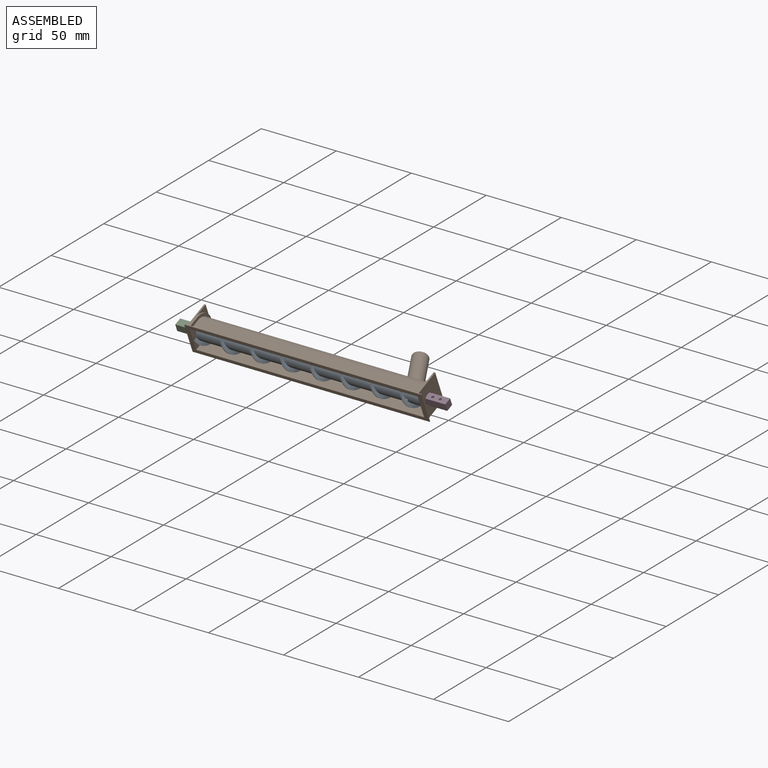
[diagram: assembled view]
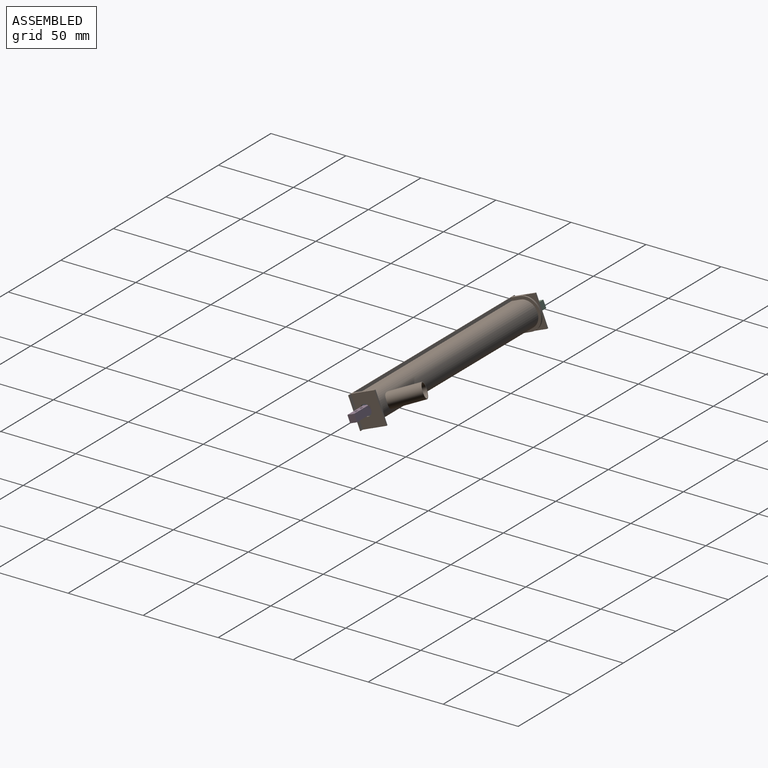
[diagram: assembled view, second angle]
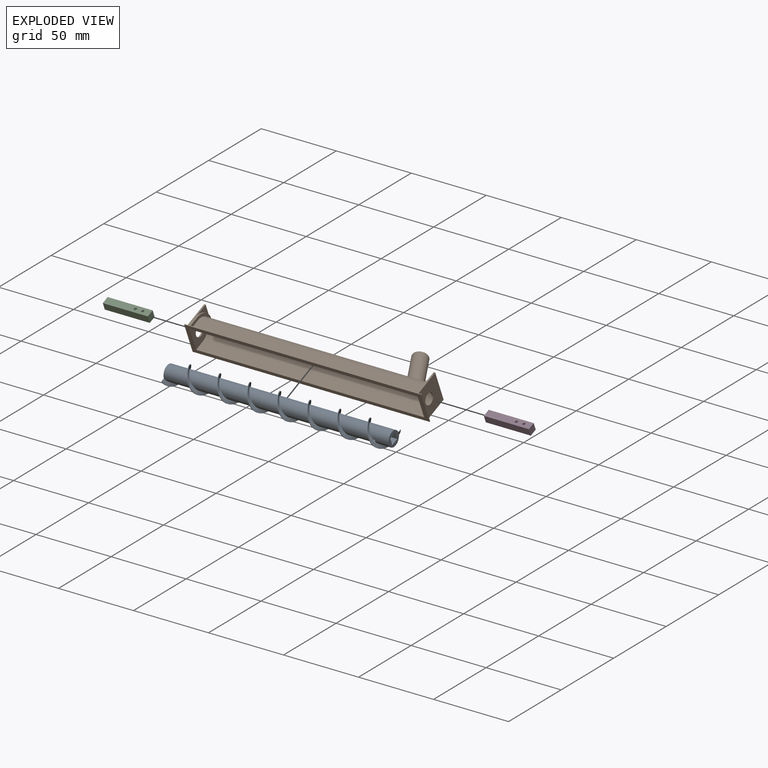
[diagram: exploded view]
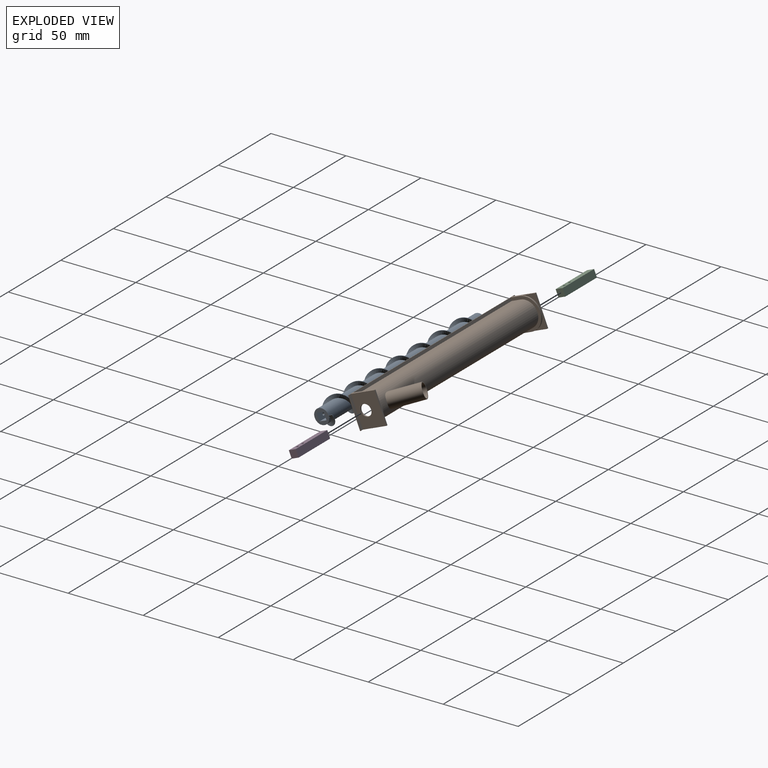
[diagram: exploded view, second angle]
ASSEMBLY  parts=4 mates=8
PART A: 34 faces, bbox 150.5x15x15.8 mm
  f0: bspline ~150x15.77mm, area 824mm2, adj f1,f2,f3,f4,f5,f6,f7,f8
  f1: cylinder r=0.88mm len=2.5mm, axis (0,1,0), area 13.6mm2, adj f0,f2,f3,f9,f10
  f2: plane 1.62x1.23mm, normal (0,1,0), area 0.7mm2, adj f0,f1,f10
  f3: cylinder r=5mm len=150mm, axis (-1,0,0), area 4560mm2, adj f0,f1,f4,f6,f7,f10,f11
  f4: plane 2.5x0.5mm, normal (0,0,-1), area 1.3mm2, adj f0,f3,f5,f10
  f5: cylinder r=7.5mm len=150mm, axis (1,0,0), area 192.6mm2, adj f0,f4,f6,f10
  f6: plane 12.5x10mm, normal (1,0,0), area 56mm2, adj f0,f3,f5,f10,f12,f13,f14,f15
  f7: cylinder r=0.88mm len=2.5mm, axis (0,1,0), area 13.6mm2, adj f0,f3,f8,f10,f13
  f8: plane 1.62x1.23mm, normal (0,-1,0), area 0.7mm2, adj f0,f7,f10
  f9: plane 15x5mm, normal (0,1,0), area 70.2mm2, adj f1,f11,f16,f17,f18,f19
  f10: bspline ~150x15.77mm, area 826.4mm2, adj f1,f2,f3,f4,f5,f6,f7,f8
  f11: plane 10x10mm, normal (-1,0,0), area 53.5mm2, adj f3,f9,f17,f19,f20
  f12: plane 15x5mm, normal (0,0,-1), area 75mm2, adj f6,f13,f15,f21
  f13: plane 15x5mm, normal (0,-1,0), area 70.2mm2, adj f6,f7,f12,f14,f21,f22
  f14: plane 15x5mm, normal (0,0,1), area 75mm2, adj f6,f13,f15,f21
  f15: plane 15x5mm, normal (0,1,0), area 70.2mm2, adj f6,f12,f14,f21,f23,f24
  f16: cylinder r=0.88mm len=2.5mm, axis (0,1,0), area 13.5mm2, adj f9,f25
  f17: plane 15x5mm, normal (0,0,-1), area 75mm2, adj f9,f11,f18,f20
  f18: plane 7.5x7.5mm, normal (1,0,0), area 19.2mm2, adj f9,f17,f19,f20,f26
  f19: plane 15x5mm, normal (0,0,1), area 75mm2, adj f9,f11,f18,f20
  f20: plane 15x5mm, normal (0,-1,0), area 70.2mm2, adj f11,f17,f18,f19,f27,f28
  f21: plane 7.5x7.5mm, normal (-1,0,0), area 19.2mm2, adj f12,f13,f14,f15,f26
  f22: cylinder r=0.88mm len=2.42mm, axis (0,1,0), area 13.3mm2, adj f13,f29
  f23: cylinder r=0.88mm len=2.42mm, axis (0,1,0), area 13.3mm2, adj f15,f30
  f24: cylinder r=0.88mm len=2.42mm, axis (0,1,0), area 13.3mm2, adj f15,f31
  f25: cylinder r=5mm len=1.75mm, axis (-1,0,0), area 2.4mm2, adj f16
  f26: cylinder r=3.75mm len=120mm, axis (-1,0,0), area 2827.4mm2, adj f18,f21
  f27: cylinder r=0.88mm len=2.42mm, axis (0,1,0), area 13.3mm2, adj f20,f32
  f28: cylinder r=0.88mm len=2.42mm, axis (0,1,0), area 13.3mm2, adj f20,f33
  f29: cylinder r=5mm len=1.75mm, axis (-1,0,0), area 2.4mm2, adj f22
  f30: cylinder r=5mm len=1.75mm, axis (-1,0,0), area 2.4mm2, adj f23
  f31: cylinder r=5mm len=1.75mm, axis (-1,0,0), area 2.4mm2, adj f24
  f32: cylinder r=5mm len=1.75mm, axis (-1,0,0), area 2.4mm2, adj f27
  f33: cylinder r=5mm len=1.75mm, axis (-1,0,0), area 2.4mm2, adj f28
PART B: 34 faces, bbox 148.8x21x81.8 mm
  f0: plane 135.95x63.39mm, normal (-0.42,0,-0.91), area 300mm2, adj f2,f7,f12,f14
  f1: plane 135.95x63.39mm, normal (-0.42,0,-0.91), area 300mm2, adj f4,f8,f12,f14
  f2: plane 138.69x69.28mm, normal (0,-1,0), area 975mm2, adj f0,f3,f12,f14
  f3: cylinder r=8.5mm len=139.54mm, axis (-0.91,0,0.42), area 3914.5mm2, adj f2,f4,f12,f14,f32
  f4: plane 138.69x69.28mm, normal (0,1,0), area 975mm2, adj f1,f3,f12,f14
  f5: cylinder r=8mm len=141.14mm, axis (-0.91,0,0.42), area 3746.8mm2, adj f6,f10,f20,f23,f31
  f6: plane 140.72x70.58mm, normal (0,1,0), area 1064mm2, adj f5,f9,f20,f23
  f7: plane 148.78x81.79mm, normal (0,-1,0), area 126mm2, adj f0,f9,f11,f12,f13,f14,f16,f17
  f8: plane 148.78x81.79mm, normal (0,1,0), area 126mm2, adj f1,f9,f11,f12,f13,f14,f15,f17
  f9: plane 143.2x66.77mm, normal (0.42,0,0.91), area 886mm2, adj f6,f7,f8,f10,f20,f23,f28,f30
  f10: plane 140.72x70.58mm, normal (0,-1,0), area 1064mm2, adj f5,f9,f20,f23
  f11: cylinder r=10.5mm len=21mm, axis (-0.91,0,0.42), area 33mm2, adj f7,f8,f12,f15,f16
  f12: plane 21x15.41mm, normal (0.91,0,-0.42), area 85.7mm2, adj f0,f1,f2,f3,f4,f7,f8,f11
  f13: cylinder r=10.5mm len=21mm, axis (0.91,0,-0.42), area 33mm2, adj f7,f8,f14,f21,f22
  f14: plane 21x15.41mm, normal (-0.91,0,0.42), area 85.7mm2, adj f0,f1,f2,f3,f4,f7,f8,f13
  f15: plane 10.5x9.52mm, normal (0.91,0,-0.42), area 23.7mm2, adj f8,f11,f17
  f16: plane 10.5x9.52mm, normal (0.91,0,-0.42), area 23.7mm2, adj f7,f11,f17
  f17: plane 21x0.91mm, normal (-0.42,0,-0.91), area 21mm2, adj f7,f8,f15,f16,f19
  f18: cylinder r=3.74mm len=7.47mm, axis (0.91,0,-0.42), area 23.5mm2, adj f19,f20
  f19: plane 21x15.41mm, normal (-0.91,0,0.42), area 313.2mm2, adj f7,f8,f17,f18,f27
  f20: plane 16x13.59mm, normal (0.91,0,-0.42), area 168.7mm2, adj f5,f6,f9,f10,f18
  f21: plane 10.5x9.52mm, normal (-0.91,0,0.42), area 23.7mm2, adj f7,f13,f24
  f22: plane 10.5x9.52mm, normal (-0.91,0,0.42), area 23.7mm2, adj f8,f13,f24
  f23: plane 16x13.59mm, normal (-0.91,0,0.42), area 168.7mm2, adj f5,f6,f9,f10,f25
  f24: plane 21x0.91mm, normal (-0.42,0,-0.91), area 21mm2, adj f7,f8,f21,f22,f26
  f25: cylinder r=3.74mm len=7.47mm, axis (-0.91,0,0.42), area 23.5mm2, adj f23,f26
  f26: plane 21x15.41mm, normal (0.91,0,-0.42), area 313.2mm2, adj f7,f8,f24,f25,f29
  f27: plane 21x1.81mm, normal (-0.42,0,-0.91), area 42mm2, adj f7,f8,f19,f28
  f28: plane 21x0.45mm, normal (-0.91,0,0.42), area 10.5mm2, adj f7,f8,f9,f27
  f29: plane 21x1.81mm, normal (-0.42,0,-0.91), area 42mm2, adj f7,f8,f26,f30
  f30: plane 21x0.45mm, normal (0.91,0,-0.42), area 10.5mm2, adj f7,f8,f9,f29
  f31: cylinder r=4.5mm len=21.48mm, axis (0,0,-1), area 565.9mm2, adj f5,f33
  f32: cylinder r=5mm len=21.22mm, axis (0,0,-1), area 615.5mm2, adj f3,f33
  f33: plane 10x10mm, normal (0,0,-1), area 14.9mm2, adj f31,f32
PART C: 8 faces, bbox 30x5x5 mm
  f0: plane 30x5mm, normal (0,1,0), area 150mm2, adj f1,f3,f4,f5
  f1: plane 30x5mm, normal (0,0,1), area 145.2mm2, adj f0,f2,f4,f5,f6,f7
  f2: plane 30x5mm, normal (0,-1,0), area 150mm2, adj f1,f3,f4,f5
  f3: plane 30x5mm, normal (0,0,-1), area 145.2mm2, adj f0,f2,f4,f5,f6,f7
  f4: plane 5x5mm, normal (1,0,0), area 25mm2, adj f0,f1,f2,f3
  f5: plane 5x5mm, normal (-1,0,0), area 25mm2, adj f0,f1,f2,f3
  f6: cylinder r=0.88mm len=5mm, axis (0,0,1), area 27.5mm2, adj f1,f3
  f7: cylinder r=0.88mm len=5mm, axis (0,0,1), area 27.5mm2, adj f1,f3
PART D: same geometry as C
PLACE A rot(axis=(0,-0.98,-0.19),180deg) t=(351.79,76.09,26.71)mm
PLACE B rot(axis=(-0.12,0.82,-0.55),159.3deg) t=(342.89,136.76,51.78)mm
PLACE C rot(axis=(0,-0.98,-0.19),180deg) t=(216.79,76.09,26.71)mm
PLACE D rot(axis=(0,-0.98,-0.19),180deg) t=(366.79,76.09,26.71)mm
MATE planar A.f3 <-> B.f12  axis (1,0,0) through (351.79,76.09,26.71)mm
MATE planar A.f19 <-> D.f3  axis (0,0.38,-0.92) through (351.79,72.83,28.07)mm
MATE cylindrical A.f3 <-> B.f3  axis (-1,0,0) through (201.79,76.09,26.71)mm
MATE planar D.f2 <-> A.f9  axis (0,-0.92,-0.38) through (351.79,73.78,25.76)mm
MATE planar C.f0 <-> A.f13  axis (0,0.92,0.38) through (201.79,78.4,27.67)mm
MATE planar C.f5 <-> A.f3  axis (1,0,0) through (216.79,76.09,26.71)mm
MATE planar C.f1 <-> A.f12  axis (0,0.38,-0.92) through (201.54,77.05,24.4)mm
MATE planar A.f18 <-> D.f4  axis (-1,0,0) through (336.79,75.14,29.02)mm
